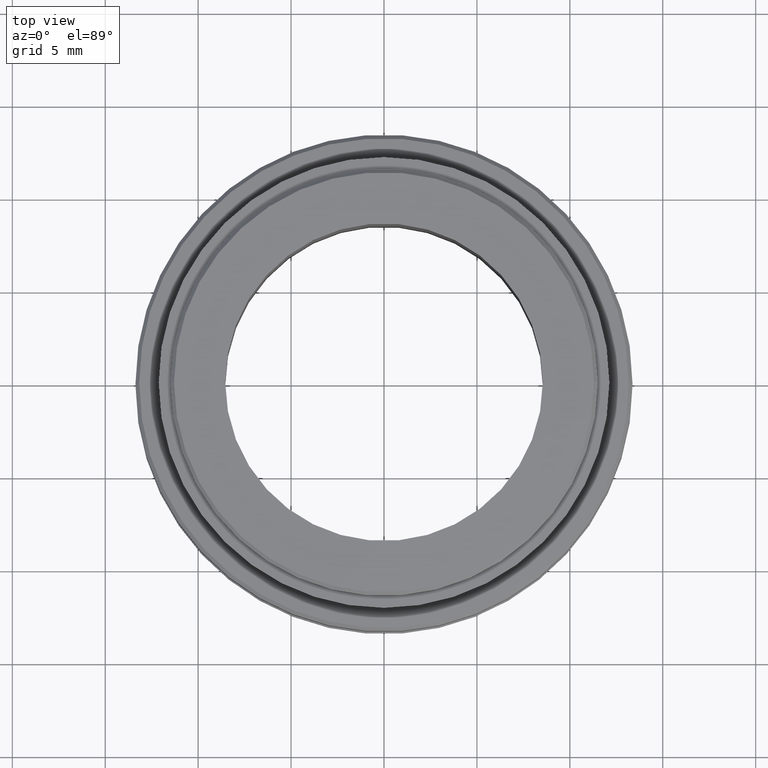
[diagram: clean part render]
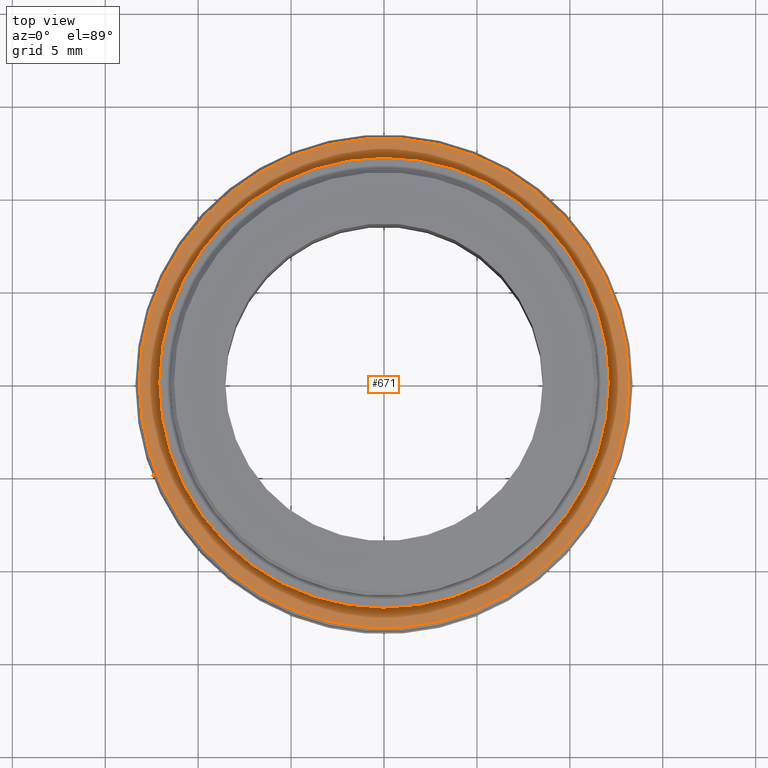
[diagram: same view with one face highlighted and labeled with its STEP entity id]
A machine part, top view. The second image highlights one B-rep face of the part: STEP entity #671.
In plain terms, the highlighted planar face has unit normal (0, 0, 1).
Its self-contained STEP definition (entity closure, byte-faithful):
#12 = VERTEX_POINT ( 'NONE', #38 ) ;
#38 = CARTESIAN_POINT ( 'NONE',  ( 13.17000000000001900, 1.625106302468538600E-015, 8.519999999999999600 ) ) ;
#80 = CARTESIAN_POINT ( 'NONE',  ( 0.0000000000000000000, 0.0000000000000000000, 8.519999999999999600 ) ) ;
#81 = DIRECTION ( 'NONE',  ( 0.0000000000000000000, 0.0000000000000000000, 1.000000000000000000 ) ) ;
#82 = DIRECTION ( 'NONE',  ( 1.000000000000000000, 0.0000000000000000000, 0.0000000000000000000 ) ) ;
#111 = CIRCLE ( 'NONE', #144, 13.17000000000001900 ) ;
#116 = AXIS2_PLACEMENT_3D ( 'NONE', #525, #565, #568 ) ;
#143 = AXIS2_PLACEMENT_3D ( 'NONE', #80, #81, #82 ) ;
#144 = AXIS2_PLACEMENT_3D ( 'NONE', #165, #166, #167 ) ;
#148 = VERTEX_POINT ( 'NONE', #280 ) ;
#165 = CARTESIAN_POINT ( 'NONE',  ( 0.0000000000000000000, 0.0000000000000000000, 8.519999999999999600 ) ) ;
#166 = DIRECTION ( 'NONE',  ( 0.0000000000000000000, 0.0000000000000000000, 1.000000000000000000 ) ) ;
#167 = DIRECTION ( 'NONE',  ( 1.000000000000000000, 0.0000000000000000000, 0.0000000000000000000 ) ) ;
#181 = CIRCLE ( 'NONE', #478, 12.12400000000000200 ) ;
#233 = CIRCLE ( 'NONE', #475, 12.12400000000000200 ) ;
#237 = CIRCLE ( 'NONE', #143, 13.17000000000001900 ) ;
#271 = EDGE_CURVE ( 'NONE', #313, #148, #233, .T. ) ;
#273 = EDGE_CURVE ( 'NONE', #148, #313, #181, .T. ) ;
#280 = CARTESIAN_POINT ( 'NONE',  ( -12.12400000000000200, 0.0000000000000000000, 8.519999999999999600 ) ) ;
#284 = ORIENTED_EDGE ( 'NONE', *, *, #273, .F. ) ;
#313 = VERTEX_POINT ( 'NONE', #679 ) ;
#328 = VERTEX_POINT ( 'NONE', #774 ) ;
#376 = ORIENTED_EDGE ( 'NONE', *, *, #458, .T. ) ;
#432 = EDGE_CURVE ( 'NONE', #12, #328, #111, .T. ) ;
#458 = EDGE_CURVE ( 'NONE', #328, #12, #237, .T. ) ;
#475 = AXIS2_PLACEMENT_3D ( 'NONE', #624, #629, #654 ) ;
#478 = AXIS2_PLACEMENT_3D ( 'NONE', #651, #652, #626 ) ;
#496 = ORIENTED_EDGE ( 'NONE', *, *, #271, .F. ) ;
#525 = CARTESIAN_POINT ( 'NONE',  ( 0.0000000000000000000, 0.0000000000000000000, 8.519999999999999600 ) ) ;
#552 = ORIENTED_EDGE ( 'NONE', *, *, #432, .T. ) ;
#560 = PLANE ( 'NONE',  #116 ) ;
#565 = DIRECTION ( 'NONE',  ( 0.0000000000000000000, 0.0000000000000000000, 1.000000000000000000 ) ) ;
#568 = DIRECTION ( 'NONE',  ( 1.000000000000000000, 0.0000000000000000000, -0.0000000000000000000 ) ) ;
#585 = EDGE_LOOP ( 'NONE', ( #376, #552 ) ) ;
#617 = EDGE_LOOP ( 'NONE', ( #284, #496 ) ) ;
#624 = CARTESIAN_POINT ( 'NONE',  ( 0.0000000000000000000, 0.0000000000000000000, 8.519999999999999600 ) ) ;
#626 = DIRECTION ( 'NONE',  ( 1.000000000000000000, 0.0000000000000000000, 0.0000000000000000000 ) ) ;
#629 = DIRECTION ( 'NONE',  ( 0.0000000000000000000, 0.0000000000000000000, 1.000000000000000000 ) ) ;
#638 = FACE_OUTER_BOUND ( 'NONE', #585, .T. ) ;
#651 = CARTESIAN_POINT ( 'NONE',  ( 0.0000000000000000000, 0.0000000000000000000, 8.519999999999999600 ) ) ;
#652 = DIRECTION ( 'NONE',  ( 0.0000000000000000000, 0.0000000000000000000, 1.000000000000000000 ) ) ;
#654 = DIRECTION ( 'NONE',  ( 1.000000000000000000, 0.0000000000000000000, 0.0000000000000000000 ) ) ;
#671 = ADVANCED_FACE ( 'NONE', ( #638, #779 ), #560, .T. ) ;
#679 = CARTESIAN_POINT ( 'NONE',  ( 12.12400000000000200, 1.484761779286251400E-015, 8.519999999999999600 ) ) ;
#774 = CARTESIAN_POINT ( 'NONE',  ( -13.17000000000001900, 0.0000000000000000000, 8.519999999999999600 ) ) ;
#779 = FACE_BOUND ( 'NONE', #617, .T. ) ;